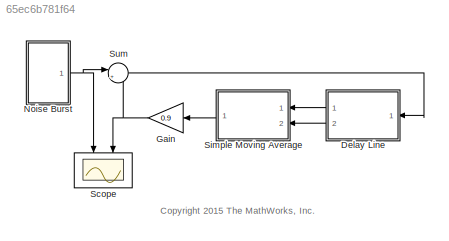
MODEL slx_65ec6b781f64
KIND model
CONFIG AbsTol = auto
CONFIG FixedStep = 0.02
CONFIG MaxStep = auto
CONFIG MinStep = auto
CONFIG RelTol = 1e-3
CONFIG SampleTimeConstraint = Unconstrained
CONFIG Solver = FixedStepDiscrete
CONFIG SolverMode = Auto
CONFIG SolverName = FixedStepDiscrete
CONFIG StartTime = 0.0
CONFIG StopTime = 10
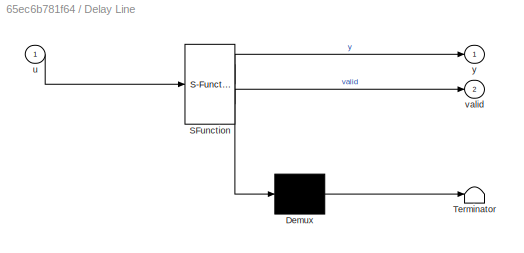
BLOCK [SubSystem] Delay Line
  ErrorFcn = Stateflow.Translate.translate
  PermitHierarchicalResolution = ParametersOnly
  Ports = [1, 2]
  RequestExecContextInheritance = off
  SFBlockType = MATLAB Function
  TreatAsAtomicUnit = on
  Variant = off
BLOCK [Demux] Delay Line/ Demux 
  Outputs = 1
  Ports = [1, 1]
BLOCK [S-Function] Delay Line/ SFunction 
  EnableBusSupport = on
  FunctionName = sf_sfun
  PortCounts = [1 3]
  Ports = [1, 3]
  SFunctionDeploymentMode = off
  Tag = Stateflow S-Function eml_karplus_strong_tmp 4
BLOCK [Terminator] Delay Line/ Terminator 
BLOCK [Inport] Delay Line/u
  IconDisplay = Port number
BLOCK [Outport] Delay Line/valid
  IconDisplay = Port number
  Port = 2
BLOCK [Outport] Delay Line/y
  IconDisplay = Port number
BLOCK [Gain] Gain
  Gain = 0.9
  OutDataTypeStr = Inherit: Inherit via internal rule
  ParamDataTypeStr = Inherit: Inherit via internal rule
  SaturateOnIntegerOverflow = off
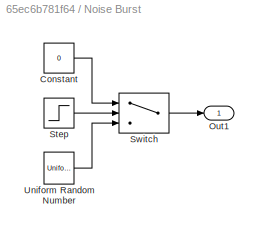
BLOCK [SubSystem] Noise Burst
  Ports = [0, 1]
  RequestExecContextInheritance = off
  Variant = off
BLOCK [Constant] Noise Burst/Constant
  Value = 0
BLOCK [Outport] Noise Burst/Out1
  IconDisplay = Port number
BLOCK [Step] Noise Burst/Step
  SampleTime = 0
BLOCK [Switch] Noise Burst/Switch
  Criteria = u2 > Threshold
  InputSameDT = off
  SaturateOnIntegerOverflow = off
BLOCK [UniformRandomNumber] Noise Burst/Uniform Random Number
  SampleTime = 0.02
BLOCK [Scope] Scope
  DataFormat = StructureWithTime
  Decimation = 1
  Grid = on
  LimitDataPoints = off
  MaxDataPoints = 5000
  NumInputPorts = 2
  Ports = [2]
  SampleInput = off
  SampleTime = -1
  SaveName = ScopeData
  SaveToWorkspace = off
  ShowLegends = off
  TickLabels = OneTimeTick
  TimeRange = auto
  YMax = 1.22791~5
  YMin = -1.23044~-5
  ZoomMode = on
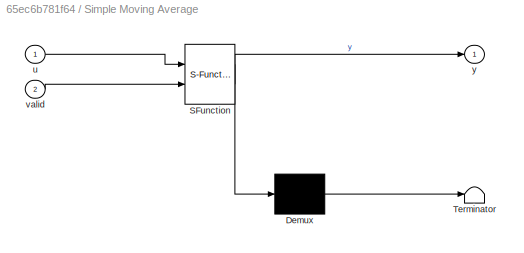
BLOCK [SubSystem] Simple Moving Average
  ErrorFcn = Stateflow.Translate.translate
  PermitHierarchicalResolution = ParametersOnly
  Ports = [2, 1]
  RequestExecContextInheritance = off
  SFBlockType = MATLAB Function
  TreatAsAtomicUnit = on
  Variant = off
BLOCK [Demux] Simple Moving Average/ Demux 
  Outputs = 1
  Ports = [1, 1]
BLOCK [S-Function] Simple Moving Average/ SFunction 
  EnableBusSupport = on
  FunctionName = sf_sfun
  PortCounts = [2 2]
  Ports = [2, 2]
  SFunctionDeploymentMode = off
  Tag = Stateflow S-Function eml_karplus_strong_tmp 2
BLOCK [Terminator] Simple Moving Average/ Terminator 
BLOCK [Inport] Simple Moving Average/u
  IconDisplay = Port number
BLOCK [Inport] Simple Moving Average/valid
  IconDisplay = Port number
  Port = 2
BLOCK [Outport] Simple Moving Average/y
  IconDisplay = Port number
BLOCK [Sum] Sum
  IconShape = round
  InputSameDT = off
  Inputs = |++
  OutDataTypeStr = Inherit: Inherit via internal rule
  Ports = [2, 1]
  SaturateOnIntegerOverflow = off
ANNOTATION (root): <copyright redacted>
LINE Delay Line:1 -> Simple Moving Average:1
LINE Delay Line:2 -> Simple Moving Average:2
NET Gain:1 -> Scope:2, Sum:2
LINE Noise Burst/Constant:1 -> Noise Burst/Switch:1
LINE Noise Burst/Step:1 -> Noise Burst/Switch:2
LINE Noise Burst/Switch:1 -> Noise Burst/Out1:1
LINE Noise Burst/Uniform Random Number:1 -> Noise Burst/Switch:3
NET Noise Burst:1 -> Scope:1, Sum:1
LINE Simple Moving Average:1 -> Gain:1
LINE Sum:1 -> Delay Line:1
note: NET lines group one-source signal fan-out (src -> all destinations, sorted); 1:1 wires keep LINE
CHART Simple Moving Average states=1 transitions=1
  STATE_LABEL 'eML_blk_kernel()'
  STATE_LABEL 'SCRIPT:\nfunction y = fcn(u, valid)\n%#codegen\n\n    persistent average prev_u prev_valid;\n    \n    if isempty(average)\n        average = 0;\n        prev_u = 0;\n        prev_valid = false;\n    end\n\n    % Compute average\n    y = average;\n\n    % Update filter state\n    if prev_valid && valid\n        average = (u + prev_u) / 2;\n    end\n    prev_u = u;\n    prev_valid = valid;\n    \nend'
CHART Delay Line states=1 transitions=1
  STATE_LABEL 'eML_blk_kernel()'
  STATE_LABEL 'SCRIPT:\nfunction [y,valid] = fcn(u)\n%#codegen\n\n    persistent values counter;\n    N = 48;\n\n    if isempty(values)\n        values = zeros(1, N);\n        counter = 0;\n    end\n\n    % Peek at buffer head\n    y = values(1);\n    valid = (counter >= N);\n\n    % Push next value\n    values = [values(2:end) u];\n    if counter < N\n        counter = counter + 1;\n    end\n\nend'
